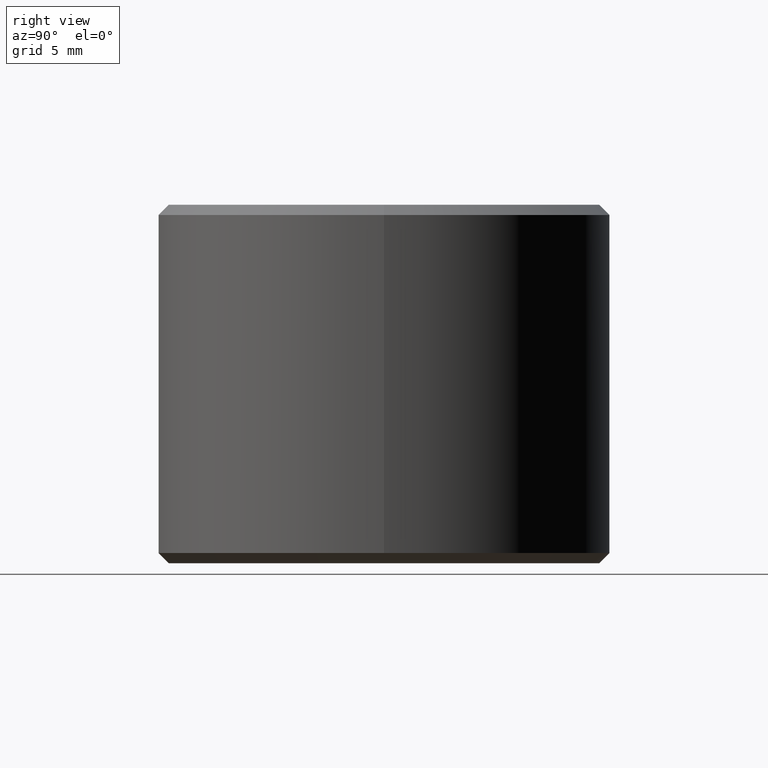
[diagram: clean part render]
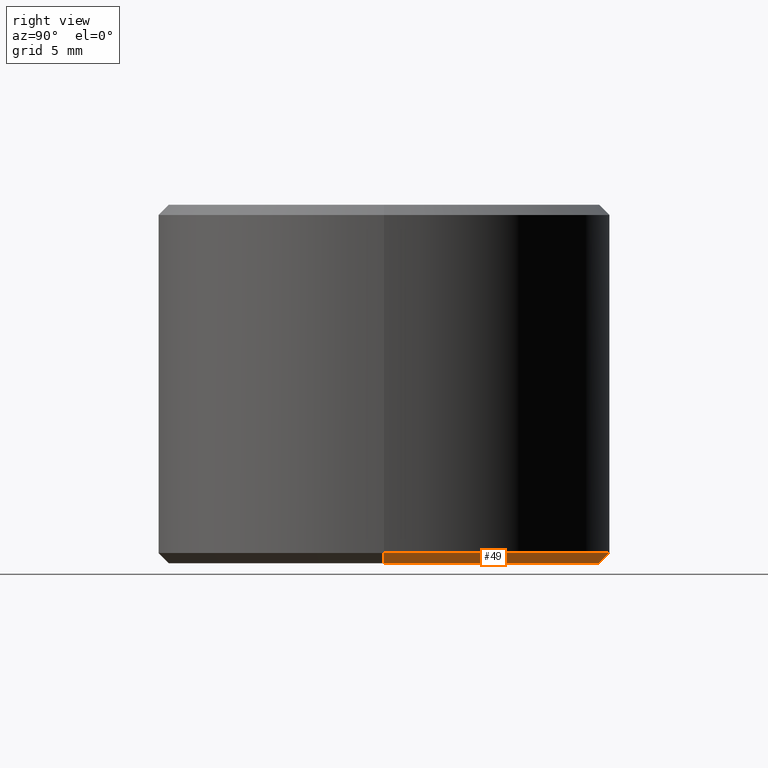
[diagram: same view with one face highlighted and labeled with its STEP entity id]
A machine part, right view. The second image highlights one B-rep face of the part: STEP entity #49.
In plain terms, the highlighted conical surface has half-angle 45 deg.
Its self-contained STEP definition (entity closure, byte-faithful):
#7 = AXIS2_PLACEMENT_3D ( 'NONE', #239, #159, #211 ) ;
#10 = EDGE_CURVE ( 'NONE', #26, #116, #66, .T. ) ;
#17 = CONICAL_SURFACE ( 'NONE', #312, 10.50000000000078700, 0.7853981633974482800 ) ;
#22 = CIRCLE ( 'NONE', #7, 11.00000000000006600 ) ;
#23 = DIRECTION ( 'NONE',  ( -0.7071067811865474600, 8.659560562354931600E-017, 0.7071067811865475700 ) ) ;
#26 = VERTEX_POINT ( 'NONE', #342 ) ;
#33 = CARTESIAN_POINT ( 'NONE',  ( -10.50000000000078700, 1.316495309083456900E-015, 4.440892098500626200E-013 ) ) ;
#36 = VERTEX_POINT ( 'NONE', #75 ) ;
#47 = AXIS2_PLACEMENT_3D ( 'NONE', #176, #322, #151 ) ;
#49 = ADVANCED_FACE ( 'NONE', ( #197 ), #17, .T. ) ;
#59 = CARTESIAN_POINT ( 'NONE',  ( 10.50000000000078700, 0.0000000000000000000, 4.440892098500626200E-013 ) ) ;
#62 = EDGE_CURVE ( 'NONE', #116, #36, #68, .T. ) ;
#64 = VECTOR ( 'NONE', #297, 1000.000000000000000 ) ;
#66 = CIRCLE ( 'NONE', #47, 10.50000000000078700 ) ;
#68 = LINE ( 'NONE', #129, #325 ) ;
#71 = CARTESIAN_POINT ( 'NONE',  ( 0.0000000000000000000, 0.0000000000000000000, 4.440892098500626200E-013 ) ) ;
#75 = CARTESIAN_POINT ( 'NONE',  ( -11.00000000000006600, 1.347111479062096500E-015, 0.4999999999997228900 ) ) ;
#113 = EDGE_CURVE ( 'NONE', #26, #290, #188, .T. ) ;
#116 = VERTEX_POINT ( 'NONE', #33 ) ;
#126 = ORIENTED_EDGE ( 'NONE', *, *, #10, .T. ) ;
#129 = CARTESIAN_POINT ( 'NONE',  ( -10.50000000000078700, 1.285879139104817300E-015, 4.440892098500626200E-013 ) ) ;
#132 = EDGE_CURVE ( 'NONE', #290, #36, #22, .T. ) ;
#143 = ORIENTED_EDGE ( 'NONE', *, *, #132, .F. ) ;
#151 = DIRECTION ( 'NONE',  ( 1.000000000000000000, 0.0000000000000000000, 0.0000000000000000000 ) ) ;
#152 = EDGE_LOOP ( 'NONE', ( #126, #262, #143, #247 ) ) ;
#159 = DIRECTION ( 'NONE',  ( -0.0000000000000000000, -0.0000000000000000000, 1.000000000000000000 ) ) ;
#176 = CARTESIAN_POINT ( 'NONE',  ( 0.0000000000000000000, 0.0000000000000000000, 4.440892098500626200E-013 ) ) ;
#184 = DIRECTION ( 'NONE',  ( 1.000000000000000000, 0.0000000000000000000, 0.0000000000000000000 ) ) ;
#188 = LINE ( 'NONE', #59, #64 ) ;
#197 = FACE_OUTER_BOUND ( 'NONE', #152, .T. ) ;
#211 = DIRECTION ( 'NONE',  ( 1.000000000000000000, 0.0000000000000000000, 0.0000000000000000000 ) ) ;
#239 = CARTESIAN_POINT ( 'NONE',  ( 0.0000000000000000000, 0.0000000000000000000, 0.4999999999997228900 ) ) ;
#247 = ORIENTED_EDGE ( 'NONE', *, *, #113, .F. ) ;
#258 = DIRECTION ( 'NONE',  ( -0.0000000000000000000, -0.0000000000000000000, 1.000000000000000000 ) ) ;
#261 = CARTESIAN_POINT ( 'NONE',  ( 11.00000000000006600, 0.0000000000000000000, 0.4999999999997228900 ) ) ;
#262 = ORIENTED_EDGE ( 'NONE', *, *, #62, .T. ) ;
#290 = VERTEX_POINT ( 'NONE', #261 ) ;
#297 = DIRECTION ( 'NONE',  ( 0.7071067811865474600, 0.0000000000000000000, 0.7071067811865475700 ) ) ;
#312 = AXIS2_PLACEMENT_3D ( 'NONE', #71, #258, #184 ) ;
#322 = DIRECTION ( 'NONE',  ( -0.0000000000000000000, -0.0000000000000000000, 1.000000000000000000 ) ) ;
#325 = VECTOR ( 'NONE', #23, 1000.000000000000000 ) ;
#342 = CARTESIAN_POINT ( 'NONE',  ( 10.50000000000078700, 0.0000000000000000000, 4.440892098500626200E-013 ) ) ;